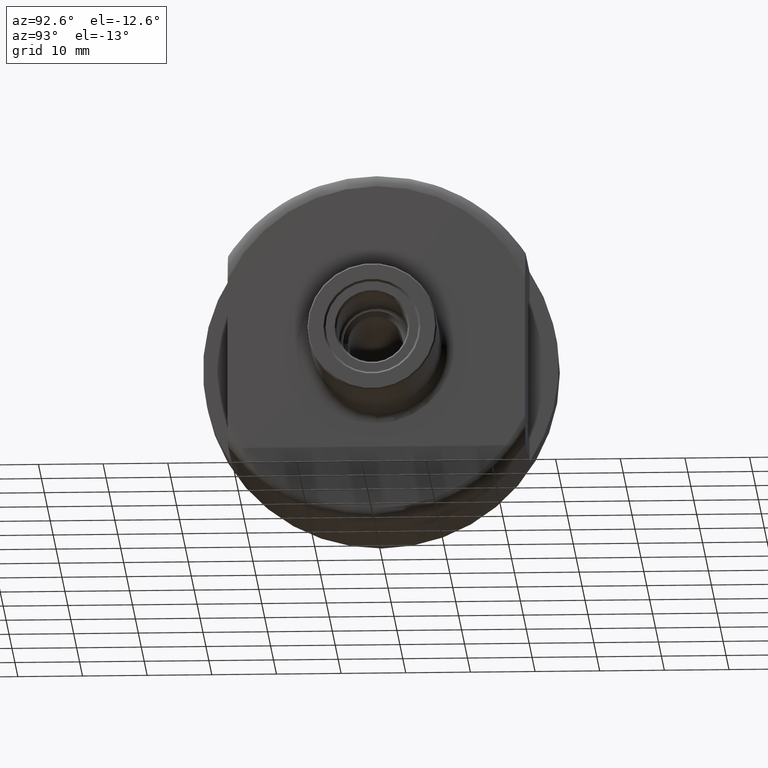
[diagram: clean part render]
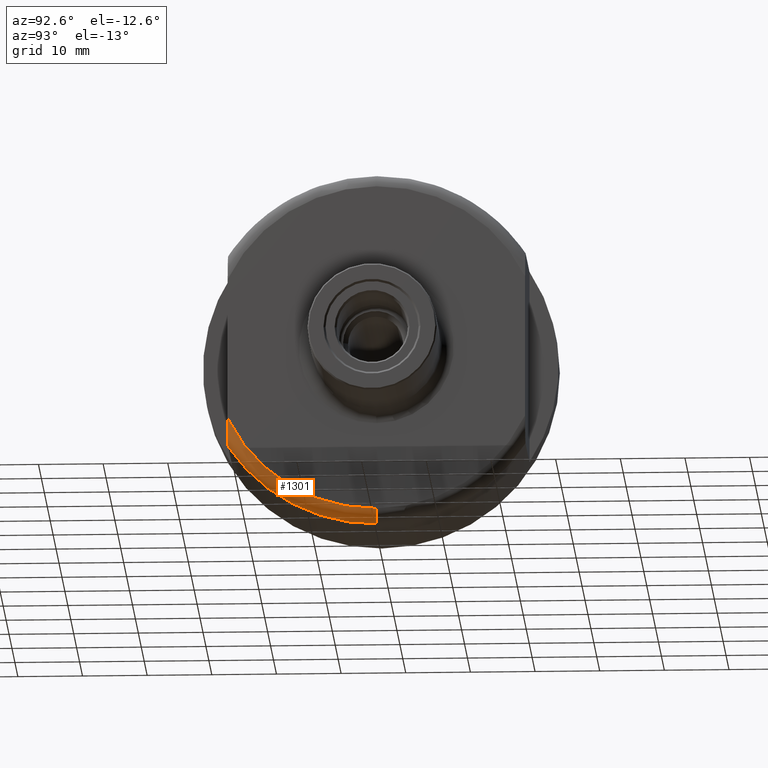
[diagram: same view with one face highlighted and labeled with its STEP entity id]
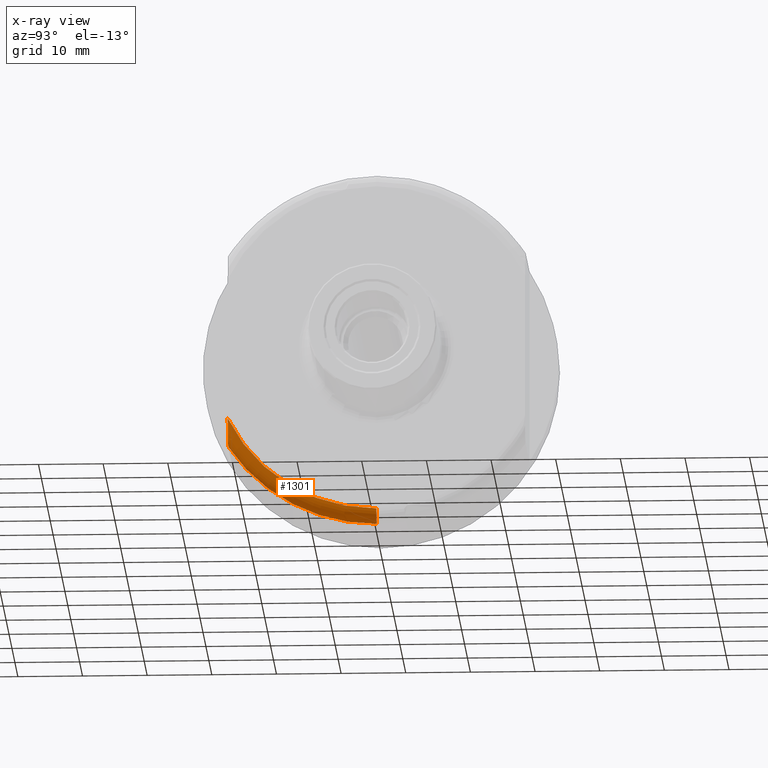
[diagram: x-ray of the same camera — body ghosted, the highlighted face saturated]
A machine part, auxiliary view. The second image highlights one B-rep face of the part: STEP entity #1301.
The next image is the same camera in x-ray: the body ghosted, the highlighted face saturated — about 0% of this face is hidden behind the body in this view.
In plain terms, the highlighted toroidal blend (fillet) surface has major radius 25.5 mm and minor (blend) radius 2 mm.
Its self-contained STEP definition (entity closure, byte-faithful):
#31 = DIRECTION ( 'NONE',  ( -0.0000000000000000000, -1.000000000000000000, -0.0000000000000000000 ) ) ;
#89 = CARTESIAN_POINT ( 'NONE',  ( 18.00000000000000400, 0.0000000000000000000, 0.0000000000000000000 ) ) ;
#316 = TOROIDAL_SURFACE ( 'NONE', #980, 25.49999999999999600, 2.000000000000000000 ) ;
#318 = FACE_OUTER_BOUND ( 'NONE', #1733, .T. ) ;
#329 = DIRECTION ( 'NONE',  ( 0.0000000000000000000, 0.0000000000000000000, -1.000000000000000000 ) ) ;
#481 = CIRCLE ( 'NONE', #1497, 25.49999999999999600 ) ;
#492 = CARTESIAN_POINT ( 'NONE',  ( 20.00000000000000400, 0.0000000000000000000, 0.0000000000000000000 ) ) ;
#500 = DIRECTION ( 'NONE',  ( 1.000000000000000000, -0.0000000000000000000, -0.0000000000000000000 ) ) ;
#515 = DIRECTION ( 'NONE',  ( 0.0000000000000000000, 0.0000000000000000000, -1.000000000000000000 ) ) ;
#527 = CIRCLE ( 'NONE', #1841, 2.000000000000001800 ) ;
#550 = CIRCLE ( 'NONE', #1813, 27.49999999999999600 ) ;
#698 = CARTESIAN_POINT ( 'NONE',  ( 18.20740174781508400, -23.00000000000000700, -15.05977897403123800 ) ) ;
#699 = CARTESIAN_POINT ( 'NONE',  ( 18.10275632863284700, -23.00000000000000700, -15.07481343168132200 ) ) ;
#709 = CARTESIAN_POINT ( 'NONE',  ( 18.00000000000000400, -23.00000000000000400, -15.07481343168132200 ) ) ;
#717 = CARTESIAN_POINT ( 'NONE',  ( 18.40591016895464400, -23.00000000000000400, -15.00347755344757400 ) ) ;
#725 = CARTESIAN_POINT ( 'NONE',  ( 18.50170023151977700, -23.00000000000000400, -14.96213820937072300 ) ) ;
#726 = CARTESIAN_POINT ( 'NONE',  ( 18.77280231638130600, -23.00000000000000700, -14.80768103168314600 ) ) ;
#736 = CARTESIAN_POINT ( 'NONE',  ( 18.92814080420999900, -23.00000000000000400, -14.66770850490764600 ) ) ;
#737 = CARTESIAN_POINT ( 'NONE',  ( 19.19604245853999200, -23.00000000000001100, -14.35303981902857700 ) ) ;
#738 = CARTESIAN_POINT ( 'NONE',  ( 19.30730775318533800, -23.00000000000000400, -14.18042072945354800 ) ) ;
#741 = CARTESIAN_POINT ( 'NONE',  ( 19.50006134548645800, -23.00000000000000700, -13.81511981410112200 ) ) ;
#746 = CARTESIAN_POINT ( 'NONE',  ( 19.58012552335292300, -23.00000000000000400, -13.62404739264465900 ) ) ;
#754 = CARTESIAN_POINT ( 'NONE',  ( 19.78157160450748700, -23.00000000000001100, -13.04386439222132700 ) ) ;
#761 = CARTESIAN_POINT ( 'NONE',  ( 19.86781725367282500, -23.00000000000000400, -12.64052279856674900 ) ) ;
#769 = CARTESIAN_POINT ( 'NONE',  ( 19.97745723018574500, -23.00000000000001100, -11.82563499327486200 ) ) ;
#787 = CARTESIAN_POINT ( 'NONE',  ( 20.00000000000000400, -23.00000000000000400, -11.41841736629698400 ) ) ;
#792 = CARTESIAN_POINT ( 'NONE',  ( 20.00000000000000400, -23.00000000000000700, -11.01135777277259600 ) ) ;
#966 = CARTESIAN_POINT ( 'NONE',  ( 18.00000000000000400, 0.0000000000000000000, -27.49999999999999600 ) ) ;
#972 = CARTESIAN_POINT ( 'NONE',  ( 18.00000000000000400, -23.00000000000000400, -15.07481343168132200 ) ) ;
#980 = AXIS2_PLACEMENT_3D ( 'NONE', #89, #2042, #329 ) ;
#1013 = CARTESIAN_POINT ( 'NONE',  ( 20.00000000000000400, 0.0000000000000000000, -25.49999999999999600 ) ) ;
#1028 = CARTESIAN_POINT ( 'NONE',  ( 18.00000000000000400, 0.0000000000000000000, -25.49999999999999600 ) ) ;
#1086 = EDGE_CURVE ( 'NONE', #1898, #1949, #550, .T. ) ;
#1114 = EDGE_CURVE ( 'NONE', #1949, #1478, #527, .T. ) ;
#1155 = EDGE_CURVE ( 'NONE', #1651, #1478, #481, .T. ) ;
#1180 = EDGE_CURVE ( 'NONE', #1898, #1651, #1902, .T. ) ;
#1301 = ADVANCED_FACE ( 'NONE', ( #318 ), #316, .T. ) ;
#1313 = CARTESIAN_POINT ( 'NONE',  ( 20.00000000000000400, -23.00000000000000700, -11.01135777277259600 ) ) ;
#1478 = VERTEX_POINT ( 'NONE', #1013 ) ;
#1497 = AXIS2_PLACEMENT_3D ( 'NONE', #492, #500, #515 ) ;
#1546 = DIRECTION ( 'NONE',  ( 0.0000000000000000000, 0.0000000000000000000, -1.000000000000000000 ) ) ;
#1651 = VERTEX_POINT ( 'NONE', #1313 ) ;
#1663 = DIRECTION ( 'NONE',  ( 0.0000000000000000000, 0.0000000000000000000, -1.000000000000000000 ) ) ;
#1720 = CARTESIAN_POINT ( 'NONE',  ( 18.00000000000000400, 0.0000000000000000000, 0.0000000000000000000 ) ) ;
#1727 = DIRECTION ( 'NONE',  ( 1.000000000000000000, -0.0000000000000000000, -0.0000000000000000000 ) ) ;
#1733 = EDGE_LOOP ( 'NONE', ( #1993, #1998, #1999, #2004 ) ) ;
#1813 = AXIS2_PLACEMENT_3D ( 'NONE', #1720, #1727, #1663 ) ;
#1841 = AXIS2_PLACEMENT_3D ( 'NONE', #1028, #31, #1546 ) ;
#1898 = VERTEX_POINT ( 'NONE', #972 ) ;
#1902 = B_SPLINE_CURVE_WITH_KNOTS ( 'NONE', 3,
 ( #709, #699, #698, #717, #725, #726, #736, #737, #738, #741, #746, #754, #761, #769, #787, #792 ),
 .UNSPECIFIED., .F., .F.,
 ( 4, 2, 2, 2, 2, 2, 2, 4 ),
 ( 0.02339459720976924000, 0.02370380834131338700, 0.02401301947285753400, 0.02463144173594582900, 0.02524986399903412700, 0.02586828626212242200, 0.02710513078829901400, 0.02834197531447560400 ),
 .UNSPECIFIED. ) ;
#1949 = VERTEX_POINT ( 'NONE', #966 ) ;
#1993 = ORIENTED_EDGE ( 'NONE', *, *, #1086, .T. ) ;
#1998 = ORIENTED_EDGE ( 'NONE', *, *, #1114, .T. ) ;
#1999 = ORIENTED_EDGE ( 'NONE', *, *, #1155, .F. ) ;
#2004 = ORIENTED_EDGE ( 'NONE', *, *, #1180, .F. ) ;
#2042 = DIRECTION ( 'NONE',  ( 1.000000000000000000, -0.0000000000000000000, -0.0000000000000000000 ) ) ;